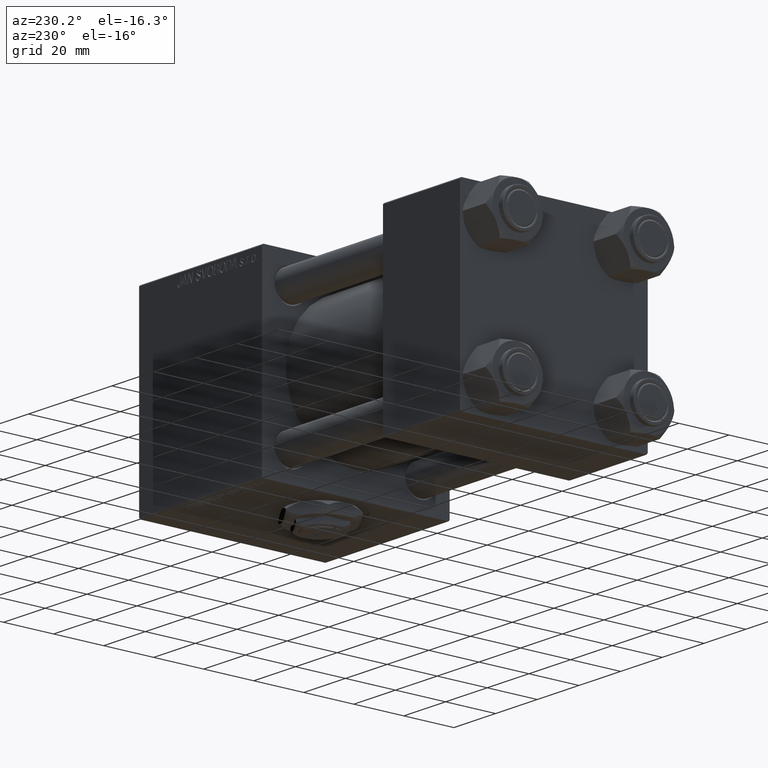
[diagram: clean part render]
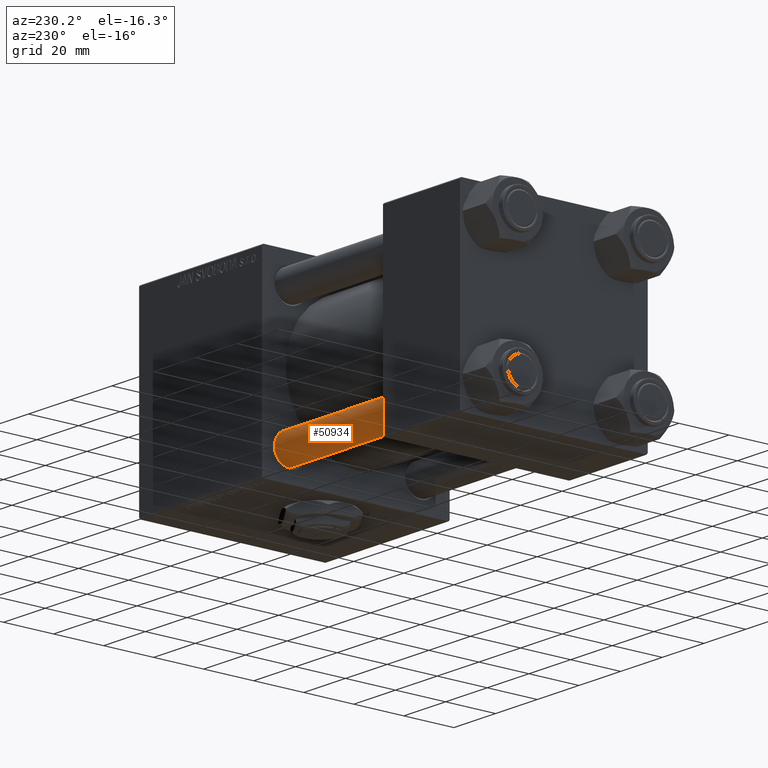
[diagram: same view with one face highlighted and labeled with its STEP entity id]
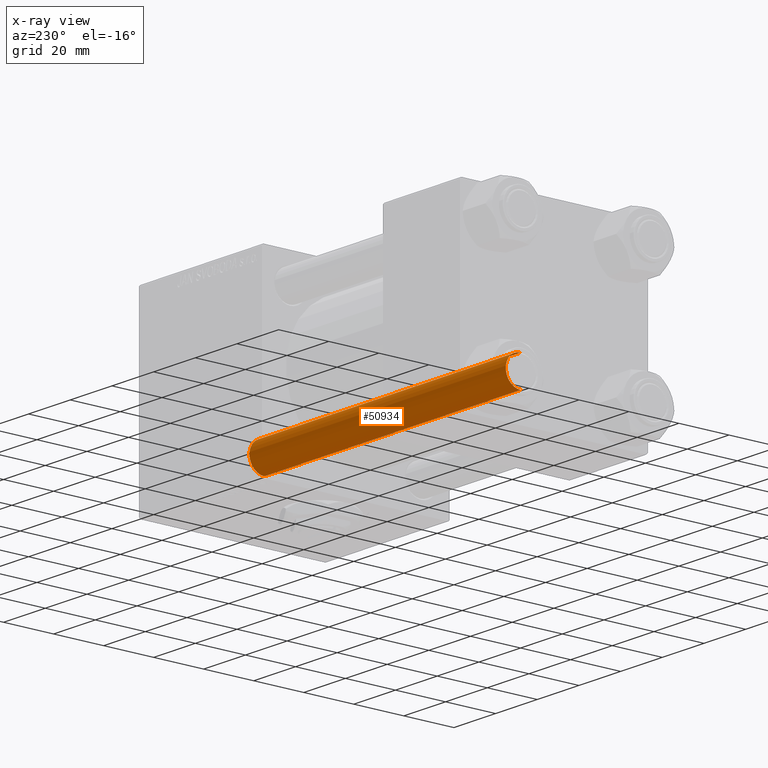
[diagram: x-ray of the same camera — body ghosted, the highlighted face saturated]
A machine part, auxiliary view. The second image highlights one B-rep face of the part: STEP entity #50934.
The next image is the same camera in x-ray: the body ghosted, the highlighted face saturated — about 0% of this face is hidden behind the body in this view.
In plain terms, the highlighted cylindrical surface (edge-blend (fillet) strip) has radius 6 mm, axis along (1, -0, -0).
Its self-contained STEP definition (entity closure, byte-faithful):
#1625 = CARTESIAN_POINT ( 'NONE',  ( 0.000000000000000000, 0.000000000000000000, 123.5000000000000426 ) ) ;
#3686 = VERTEX_POINT ( 'NONE', #46494 ) ;
#6074 = VERTEX_POINT ( 'NONE', #40006 ) ;
#8722 = FACE_OUTER_BOUND ( 'NONE', #12482, .T. ) ;
#9411 = CARTESIAN_POINT ( 'NONE',  ( 0.000000000000000000, 0.000000000000000000, 0.4999999999999865663 ) ) ;
#10431 = DIRECTION ( 'NONE',  ( -0.000000000000000000, -0.000000000000000000, 1.000000000000000000 ) ) ;
#12482 = EDGE_LOOP ( 'NONE', ( #31708, #30887, #23267, #38865 ) ) ;
#13350 = CARTESIAN_POINT ( 'NONE',  ( -6.000000000000000888, 0.000000000000000000, 124.0000000000000000 ) ) ;
#18310 = EDGE_CURVE ( 'NONE', #3686, #21514, #23884, .T. ) ;
#20980 = LINE ( 'NONE', #13350, #38197 ) ;
#21489 = DIRECTION ( 'NONE',  ( 1.000000000000000000, 0.000000000000000000, 0.000000000000000000 ) ) ;
#21514 = VERTEX_POINT ( 'NONE', #34663 ) ;
#23267 = ORIENTED_EDGE ( 'NONE', *, *, #48972, .T. ) ;
#23861 = LINE ( 'NONE', #24834, #49196 ) ;
#23884 = CIRCLE ( 'NONE', #51506, 6.000000000000000888 ) ;
#24222 = CARTESIAN_POINT ( 'NONE',  ( 0.000000000000000000, 0.000000000000000000, 124.0000000000000000 ) ) ;
#24834 = CARTESIAN_POINT ( 'NONE',  ( 6.000000000000000888, 7.347880794884120722E-16, 124.0000000000000000 ) ) ;
#25092 = EDGE_CURVE ( 'NONE', #3686, #6074, #20980, .T. ) ;
#28677 = DIRECTION ( 'NONE',  ( -1.000000000000000000, 0.000000000000000000, 0.000000000000000000 ) ) ;
#30235 = DIRECTION ( 'NONE',  ( 0.000000000000000000, 0.000000000000000000, -1.000000000000000000 ) ) ;
#30887 = ORIENTED_EDGE ( 'NONE', *, *, #46749, .T. ) ;
#31539 = AXIS2_PLACEMENT_3D ( 'NONE', #9411, #10431, #21489 ) ;
#31708 = ORIENTED_EDGE ( 'NONE', *, *, #18310, .T. ) ;
#32342 = CYLINDRICAL_SURFACE ( 'NONE', #36630, 6.000000000000000888 ) ;
#34034 = CIRCLE ( 'NONE', #31539, 6.000000000000000888 ) ;
#34663 = CARTESIAN_POINT ( 'NONE',  ( 6.000000000000000888, 7.347880794884120722E-16, 123.5000000000000426 ) ) ;
#35430 = CARTESIAN_POINT ( 'NONE',  ( 6.000000000000000888, 7.347880794884120722E-16, 0.4999999999999865663 ) ) ;
#36630 = AXIS2_PLACEMENT_3D ( 'NONE', #24222, #48615, #28677 ) ;
#36962 = DIRECTION ( 'NONE',  ( -0.000000000000000000, -0.000000000000000000, -1.000000000000000000 ) ) ;
#38197 = VECTOR ( 'NONE', #36962, 1000.000000000000000 ) ;
#38865 = ORIENTED_EDGE ( 'NONE', *, *, #25092, .F. ) ;
#40006 = CARTESIAN_POINT ( 'NONE',  ( -6.000000000000000888, 0.000000000000000000, 0.4999999999999865663 ) ) ;
#46219 = DIRECTION ( 'NONE',  ( 1.000000000000000000, 0.000000000000000000, 0.000000000000000000 ) ) ;
#46494 = CARTESIAN_POINT ( 'NONE',  ( -6.000000000000000888, 0.000000000000000000, 123.5000000000000426 ) ) ;
#46749 = EDGE_CURVE ( 'NONE', #21514, #51336, #23861, .T. ) ;
#48615 = DIRECTION ( 'NONE',  ( -0.000000000000000000, -0.000000000000000000, -1.000000000000000000 ) ) ;
#48966 = DIRECTION ( 'NONE',  ( -0.000000000000000000, -0.000000000000000000, -1.000000000000000000 ) ) ;
#48972 = EDGE_CURVE ( 'NONE', #51336, #6074, #34034, .T. ) ;
#49196 = VECTOR ( 'NONE', #48966, 1000.000000000000000 ) ;
#50934 = ADVANCED_FACE ( 'NONE', ( #8722 ), #32342, .T. ) ;
#51336 = VERTEX_POINT ( 'NONE', #35430 ) ;
#51506 = AXIS2_PLACEMENT_3D ( 'NONE', #1625, #30235, #46219 ) ;